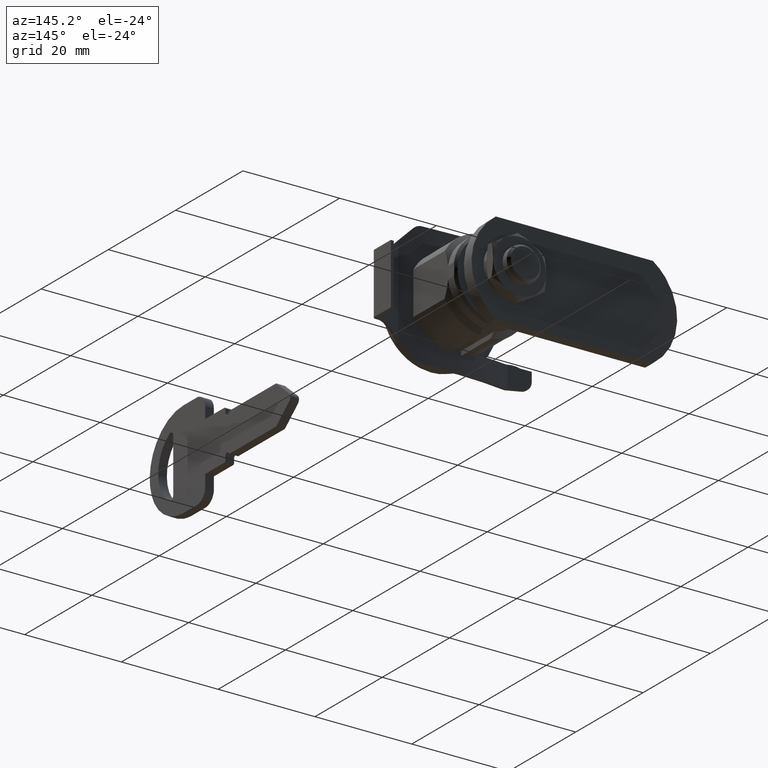
[diagram: clean part render]
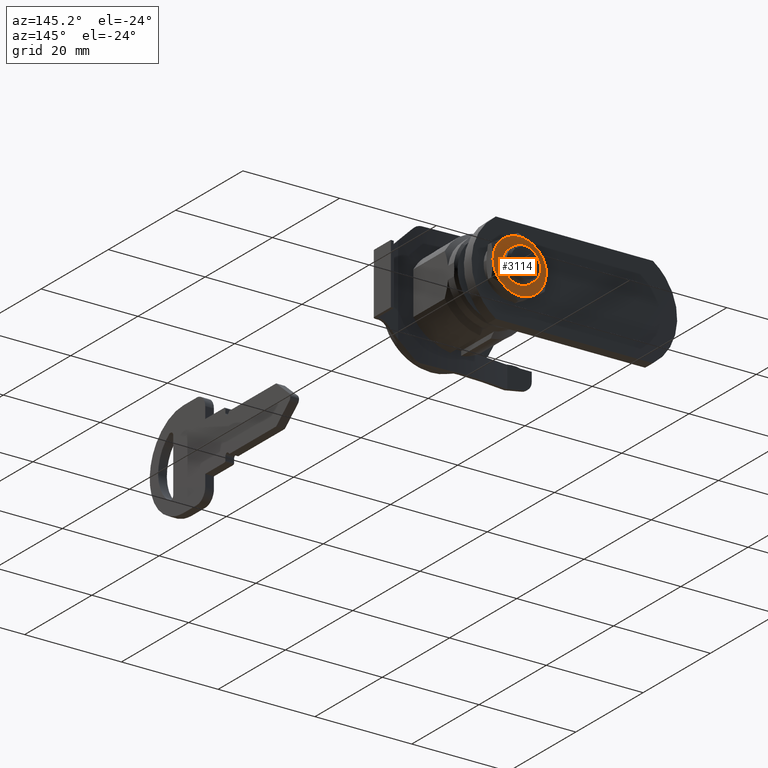
[diagram: same view with one face highlighted and labeled with its STEP entity id]
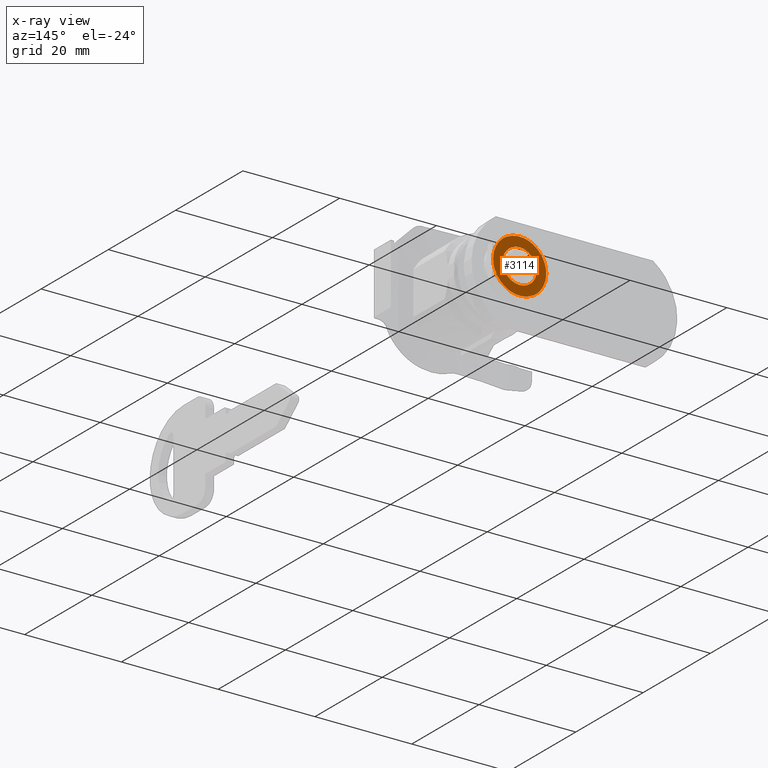
[diagram: x-ray of the same camera — body ghosted, the highlighted face saturated]
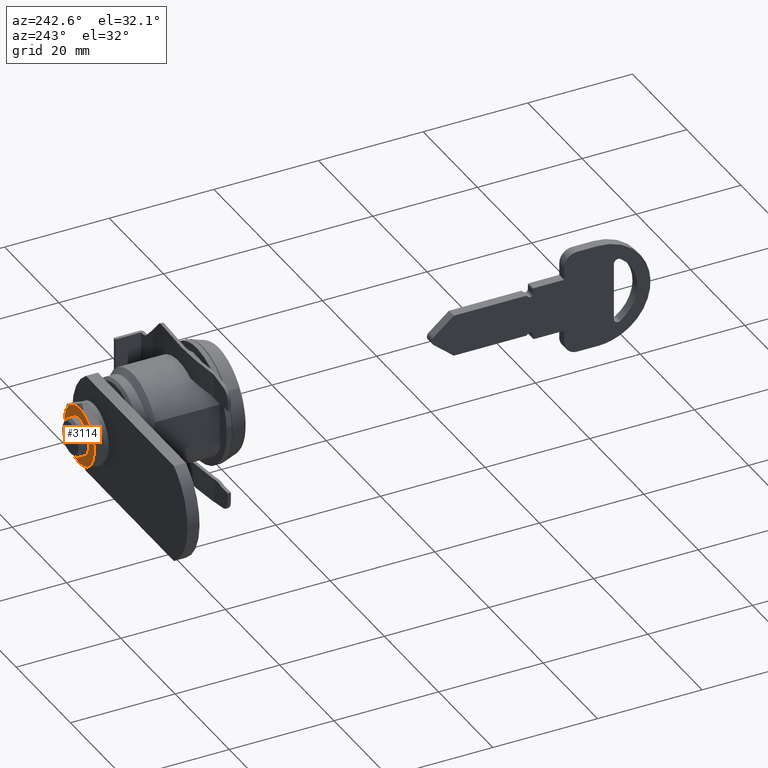
[diagram: same view with one face highlighted and labeled with its STEP entity id]
A machine part, auxiliary view. The second image highlights one B-rep face of the part: STEP entity #3114.
The next image is the same camera in x-ray: the body ghosted, the highlighted face saturated — about 0% of this face is hidden behind the body in this view.
A second angle (auxiliary view) of the same face is appended — the face is thin or edge-on in the first view.
In plain terms, the highlighted face is a freeform B-spline surface patch.
Its self-contained STEP definition (entity closure, byte-faithful):
#2109=CARTESIAN_POINT('',(27.201255000000248,3.489210668063029,-0.274606835084539));
#2110=VERTEX_POINT('',#2109);
#2116=CARTESIAN_POINT('',(27.201255000000248,0.0,3.500000000000000));
#2117=VERTEX_POINT('',#2116);
#2118=CARTESIAN_POINT('',(27.201255000000248,3.489210668063028,-0.274606835084539));
#2119=CARTESIAN_POINT('',(27.201255000000245,3.500000000000001,-0.137515374564097));
#2120=CARTESIAN_POINT('',(27.201255000000248,3.500000000000000,0.0));
#2121=CARTESIAN_POINT('',(27.201255000000256,3.500000000000000,3.500000000000000));
#2122=CARTESIAN_POINT('',(27.201255000000248,0.0,3.500000000000000));
#2130=(BOUNDED_CURVE()B_SPLINE_CURVE(2,(#2118,#2119,#2120,#2121,#2122),.UNSPECIFIED.,.F.,.U.)B_SPLINE_CURVE_WITH_KNOTS((3,2,3),(0.736331300629123,0.750000000000000,1.0),.UNSPECIFIED.)CURVE()GEOMETRIC_REPRESENTATION_ITEM()RATIONAL_B_SPLINE_CURVE((0.969723356164212,0.983986122577082,1.0,0.707106781186547,1.0))REPRESENTATION_ITEM(''));
#2131=EDGE_CURVE('',#2110,#2117,#2130,.T.);
#2133=CARTESIAN_POINT('',(27.201255000000248,-3.489210668063029,0.274606835084540));
#2134=VERTEX_POINT('',#2133);
#2135=CARTESIAN_POINT('',(27.201255000000248,0.0,3.500000000000000));
#2136=CARTESIAN_POINT('',(27.201255000000259,-3.235366720734745,3.500000000000000));
#2137=CARTESIAN_POINT('',(27.201255000000248,-3.489210668063028,0.274606835084540));
#2145=(BOUNDED_CURVE()B_SPLINE_CURVE(2,(#2135,#2136,#2137),.UNSPECIFIED.,.F.,.U.)B_SPLINE_CURVE_WITH_KNOTS((3,3),(0.0,0.236331300629123),.UNSPECIFIED.)CURVE()GEOMETRIC_REPRESENTATION_ITEM()RATIONAL_B_SPLINE_CURVE((1.0,0.723120658609465,0.969723356164212))REPRESENTATION_ITEM(''));
#2146=EDGE_CURVE('',#2117,#2134,#2145,.T.);
#2192=CARTESIAN_POINT('',(27.201255000000248,0.0,-3.500000000000000));
#2193=VERTEX_POINT('',#2192);
#2194=CARTESIAN_POINT('',(27.201255000000248,-3.489210668063028,0.274606835084540));
#2195=CARTESIAN_POINT('',(27.201255000000256,-3.500000000000000,0.137515374564097));
#2196=CARTESIAN_POINT('',(27.201255000000248,-3.500000000000000,0.0));
#2197=CARTESIAN_POINT('',(27.201255000000256,-3.500000000000000,-3.500000000000000));
#2198=CARTESIAN_POINT('',(27.201255000000248,0.0,-3.500000000000000));
#2206=(BOUNDED_CURVE()B_SPLINE_CURVE(2,(#2194,#2195,#2196,#2197,#2198),.UNSPECIFIED.,.F.,.U.)B_SPLINE_CURVE_WITH_KNOTS((3,2,3),(0.236331300629123,0.250000000000000,0.500000000000000),.UNSPECIFIED.)CURVE()GEOMETRIC_REPRESENTATION_ITEM()RATIONAL_B_SPLINE_CURVE((0.969723356164212,0.983986122577082,1.0,0.707106781186547,1.0))REPRESENTATION_ITEM(''));
#2207=EDGE_CURVE('',#2134,#2193,#2206,.T.);
#2209=CARTESIAN_POINT('',(27.201255000000248,0.0,-3.500000000000000));
#2210=CARTESIAN_POINT('',(27.201255000000256,3.235366720734727,-3.500000000000000));
#2211=CARTESIAN_POINT('',(27.201255000000252,3.489210668063029,-0.274606835084539));
#2219=(BOUNDED_CURVE()B_SPLINE_CURVE(2,(#2209,#2210,#2211),.UNSPECIFIED.,.F.,.U.)B_SPLINE_CURVE_WITH_KNOTS((3,3),(0.500000000000000,0.736331300629122),.UNSPECIFIED.)CURVE()GEOMETRIC_REPRESENTATION_ITEM()RATIONAL_B_SPLINE_CURVE((1.0,0.723120658609467,0.969723356164210))REPRESENTATION_ITEM(''));
#2220=EDGE_CURVE('',#2193,#2110,#2219,.T.);
#2617=CARTESIAN_POINT('',(27.201255000000199,-5.500000000000000,-7.328518E-025));
#2618=VERTEX_POINT('',#2617);
#2619=CARTESIAN_POINT('',(27.201255000000248,-2.749999375756456,4.763139360407080));
#2620=VERTEX_POINT('',#2619);
#2621=CARTESIAN_POINT('',(27.201255000000199,-5.500000000000000,0.0));
#2622=CARTESIAN_POINT('',(27.201255000000202,-5.500000000000000,3.175426720814376));
#2623=CARTESIAN_POINT('',(27.201255000000248,-2.749999375756456,4.763139360407080));
#2631=(BOUNDED_CURVE()B_SPLINE_CURVE(2,(#2621,#2622,#2623),.UNSPECIFIED.,.F.,.U.)CURVE()GEOMETRIC_REPRESENTATION_ITEM()QUASI_UNIFORM_CURVE()RATIONAL_B_SPLINE_CURVE((1.0,0.866025387402295,1.0))REPRESENTATION_ITEM(''));
#2632=EDGE_CURVE('',#2618,#2620,#2631,.T.);
#2681=CARTESIAN_POINT('',(27.201255360407451,2.749999375756450,4.763139360407080));
#2682=VERTEX_POINT('',#2681);
#2683=CARTESIAN_POINT('',(27.201255000000248,-2.749999375756456,4.763139360407080));
#2684=CARTESIAN_POINT('',(27.201255000000206,-4.336809E-015,6.350852720814475));
#2685=CARTESIAN_POINT('',(27.201255360407451,2.749999375756450,4.763139360407080));
#2693=(BOUNDED_CURVE()B_SPLINE_CURVE(2,(#2683,#2684,#2685),.UNSPECIFIED.,.F.,.U.)CURVE()GEOMETRIC_REPRESENTATION_ITEM()QUASI_UNIFORM_CURVE()RATIONAL_B_SPLINE_CURVE((1.0,0.866025436548723,1.0))REPRESENTATION_ITEM(''));
#2694=EDGE_CURVE('',#2620,#2682,#2693,.T.);
#2741=CARTESIAN_POINT('',(27.201255000000199,5.500000000000000,-7.328518E-025));
#2742=VERTEX_POINT('',#2741);
#2743=CARTESIAN_POINT('',(27.201255360407451,2.749999375756450,4.763139360407080));
#2744=CARTESIAN_POINT('',(27.201255000000209,5.500000000000000,3.175426720814377));
#2745=CARTESIAN_POINT('',(27.201255000000199,5.500000000000000,0.0));
#2753=(BOUNDED_CURVE()B_SPLINE_CURVE(2,(#2743,#2744,#2745),.UNSPECIFIED.,.F.,.U.)CURVE()GEOMETRIC_REPRESENTATION_ITEM()QUASI_UNIFORM_CURVE()RATIONAL_B_SPLINE_CURVE((1.0,0.866025387402295,1.0))REPRESENTATION_ITEM(''));
#2754=EDGE_CURVE('',#2682,#2742,#2753,.T.);
#2803=CARTESIAN_POINT('',(27.201254860407399,2.749999808769035,-4.763140110407281));
#2804=VERTEX_POINT('',#2803);
#2805=CARTESIAN_POINT('',(27.201255000000199,5.500000000000000,0.0));
#2806=CARTESIAN_POINT('',(27.201255000000199,5.500000000000000,-3.175426720814473));
#2807=CARTESIAN_POINT('',(27.201254860407399,2.749999808769035,-4.763140110407281));
#2815=(BOUNDED_CURVE()B_SPLINE_CURVE(2,(#2805,#2806,#2807),.UNSPECIFIED.,.F.,.U.)CURVE()GEOMETRIC_REPRESENTATION_ITEM()QUASI_UNIFORM_CURVE()RATIONAL_B_SPLINE_CURVE((1.0,0.866025387402289,1.0))REPRESENTATION_ITEM(''));
#2816=EDGE_CURVE('',#2742,#2804,#2815,.T.);
#2863=CARTESIAN_POINT('',(27.201254860407399,-2.749999808769035,-4.763140110407281));
#2864=VERTEX_POINT('',#2863);
#2865=CARTESIAN_POINT('',(27.201254860407399,-2.749999808769035,-4.763140110407281));
#2866=CARTESIAN_POINT('',(27.201255000000199,-5.500000000000000,-3.175426720814475));
#2867=CARTESIAN_POINT('',(27.201255000000199,-5.500000000000000,0.0));
#2875=(BOUNDED_CURVE()B_SPLINE_CURVE(2,(#2865,#2866,#2867),.UNSPECIFIED.,.F.,.U.)CURVE()GEOMETRIC_REPRESENTATION_ITEM()QUASI_UNIFORM_CURVE()RATIONAL_B_SPLINE_CURVE((1.0,0.866025387402289,1.0))REPRESENTATION_ITEM(''));
#2876=EDGE_CURVE('',#2864,#2618,#2875,.T.);
#2923=CARTESIAN_POINT('',(27.201254860407399,2.749999808769035,-4.763140110407281));
#2924=CARTESIAN_POINT('',(27.201255000000199,0.0,-6.350852720814378));
#2925=CARTESIAN_POINT('',(27.201254860407399,-2.749999808769035,-4.763140110407281));
#2933=(BOUNDED_CURVE()B_SPLINE_CURVE(2,(#2923,#2924,#2925),.UNSPECIFIED.,.F.,.U.)CURVE()GEOMETRIC_REPRESENTATION_ITEM()QUASI_UNIFORM_CURVE()RATIONAL_B_SPLINE_CURVE((1.0,0.866025436548736,1.0))REPRESENTATION_ITEM(''));
#2934=EDGE_CURVE('',#2804,#2864,#2933,.T.);
#3095=CARTESIAN_POINT('',(27.201255000000199,-6.049449978679865,6.049449473580813));
#3096=CARTESIAN_POINT('',(27.201255000000199,6.049450273722857,6.049449473580813));
#3097=CARTESIAN_POINT('',(27.201255000000199,-6.049449978679865,-6.049450367242973));
#3098=CARTESIAN_POINT('',(27.201255000000199,6.049450273722857,-6.049450367242973));
#3099=B_SPLINE_SURFACE_WITH_KNOTS('',1,1,((#3095,#3097),(#3096,#3098)),.UNSPECIFIED.,.F.,.F.,.U.,(2,2),(2,2),(0.0,12.098900252402720),(0.0,12.098899840823790),.UNSPECIFIED.);
#3100=ORIENTED_EDGE('',*,*,#2754,.F.);
#3101=ORIENTED_EDGE('',*,*,#2694,.F.);
#3102=ORIENTED_EDGE('',*,*,#2632,.F.);
#3103=ORIENTED_EDGE('',*,*,#2876,.F.);
#3104=ORIENTED_EDGE('',*,*,#2934,.F.);
#3105=ORIENTED_EDGE('',*,*,#2816,.F.);
#3106=EDGE_LOOP('',(#3100,#3101,#3102,#3103,#3104,#3105));
#3107=FACE_OUTER_BOUND('',#3106,.T.);
#3108=ORIENTED_EDGE('',*,*,#2220,.F.);
#3109=ORIENTED_EDGE('',*,*,#2207,.F.);
#3110=ORIENTED_EDGE('',*,*,#2146,.F.);
#3111=ORIENTED_EDGE('',*,*,#2131,.F.);
#3112=EDGE_LOOP('',(#3108,#3109,#3110,#3111));
#3113=FACE_BOUND('',#3112,.T.);
#3114=ADVANCED_FACE('',(#3107,#3113),#3099,.F.);